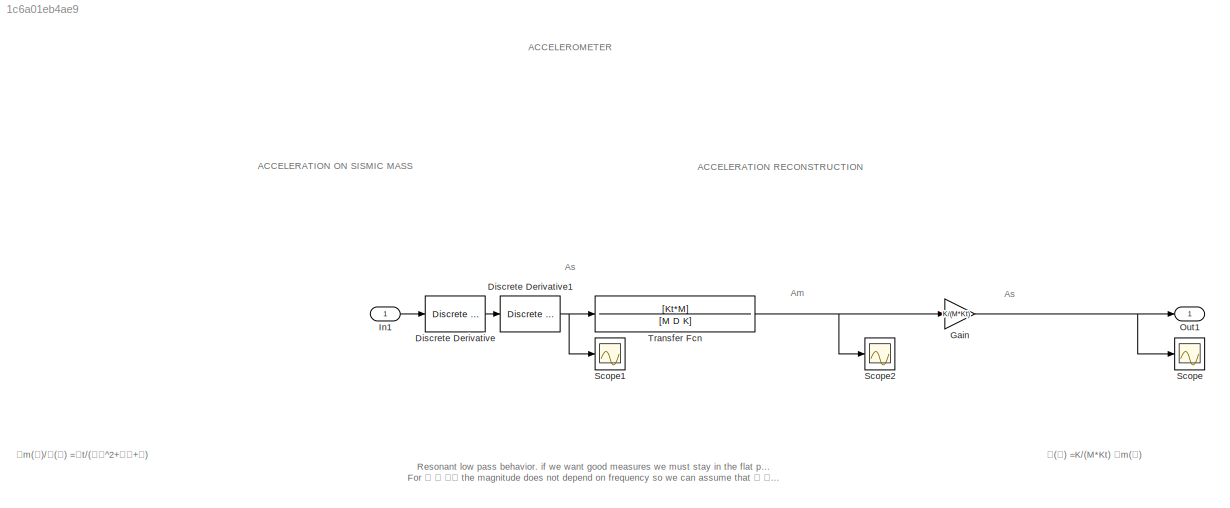
MODEL slx_1c6a01eb4ae9
KIND model
CONFIG AbsTol = auto
CONFIG EnableMultiTasking = off
CONFIG FixedStep = auto
CONFIG MaxStep = auto
CONFIG MinStep = auto
CONFIG RelTol = 1e-3
CONFIG SampleTimeConstraint = Unconstrained
CONFIG Solver = VariableStepAuto
CONFIG SolverName = VariableStepAuto
CONFIG StartTime = 0.0
CONFIG StopTime = 10.0
BLOCK [Reference] Discrete Derivative  REF=simulink/Discrete/Discrete Derivative
  Ports = [1, 1]
  SourceBlock = simulink/Discrete/Discrete Derivative
  SourceProductBaseCode = SL
  SourceProductName = Simulink
  SourceType = Discrete Derivative
BLOCK [Reference] Discrete Derivative1  REF=simulink/Discrete/Discrete Derivative
  Ports = [1, 1]
  SourceBlock = simulink/Discrete/Discrete Derivative
  SourceProductBaseCode = SL
  SourceProductName = Simulink
  SourceType = Discrete Derivative
BLOCK [Gain] Gain
  Gain = K/(M*Kt)
  OutDataTypeStr = Inherit: Inherit via internal rule
  ParamDataTypeStr = Inherit: Inherit via internal rule
  SaturateOnIntegerOverflow = off
BLOCK [Inport] In1
  IconDisplay = Port number
BLOCK [Outport] Out1
  IconDisplay = Port number
BLOCK [Scope] Scope
  Floating = off
  NumInputPorts = 1
  Ports = [1]
  ScopeSpecificationString = Simulink.scopes.TimeScopeBlockCfg('CurrentConfiguration', extmgr.ConfigurationSet(extmgr.Configuration('Core','General UI',true),extmgr.Configuration('Core','Source UI',true),extmgr.Configuration('Sources','WiredSimulink',true),extmgr.Configuration('Visuals','Time Domain',true,'SerializedDisplays',{struct('MinYLimReal','-3.359','MaxYLimReal','30.12486','YLabelReal','','MinYLimMag','0.00000','MaxYL...<+1353ch>
BLOCK [Scope] Scope1
  Floating = off
  NumInputPorts = 1
  Ports = [1]
  ScopeSpecificationString = Simulink.scopes.TimeScopeBlockCfg('CurrentConfiguration', extmgr.ConfigurationSet(extmgr.Configuration('Core','General UI',true),extmgr.Configuration('Core','Source UI',true),extmgr.Configuration('Sources','WiredSimulink',true,'DataLoggingVariableName','ScopeData1'),extmgr.Configuration('Visuals','Time Domain',true,'SerializedDisplays',{struct('MinYLimReal','-3.36646','MaxYLimReal','30.14675','YLa...<+1383ch>
BLOCK [Scope] Scope2
  Floating = off
  NumInputPorts = 1
  Ports = [1]
  ScopeSpecificationString = Simulink.scopes.TimeScopeBlockCfg('CurrentConfiguration', extmgr.ConfigurationSet(extmgr.Configuration('Core','General UI',true),extmgr.Configuration('Core','Source UI',true),extmgr.Configuration('Sources','WiredSimulink',true,'DataLoggingVariableName','ScopeData1'),extmgr.Configuration('Visuals','Time Domain',true,'SerializedDisplays',{struct('MinYLimReal','-0.01679','MaxYLimReal','0.15062','YLab...<+1371ch>
BLOCK [TransferFcn] Transfer Fcn
  Denominator = [M D K]
  Numerator = [Kt*M]
ANNOTATION (root): 𝐴(𝑠) =K/(M*Kt) 𝐴m(𝑠)
ANNOTATION (root): 𝐴m(𝑠)/𝐴(𝑠) =𝐾t/(𝑀𝑠^2+𝐷𝑠+𝐾)
ANNOTATION (root): ACCELEROMETER
ANNOTATION (root): ACCELERATION ON SISMIC MASS
ANNOTATION (root): ACCELERATION RECONSTRUCTION
ANNOTATION (root): Am
ANNOTATION (root): As
ANNOTATION (root): Resonant low pass behavior. if we want good measures we must stay in the flat part. For 𝜔 ≪ 𝜔𝑛 the magnitude does not depend on frequency so we can assume that 𝐺 𝑠 ≈ 𝐺(0) in this region.
NET Discrete Derivative1:1 -> Scope1:1, Transfer Fcn:1
LINE Discrete Derivative:1 -> Discrete Derivative1:1
NET Gain:1 -> Out1:1, Scope:1
LINE In1:1 -> Discrete Derivative:1
NET Transfer Fcn:1 -> Gain:1, Scope2:1
note: NET lines group one-source signal fan-out (src -> all destinations, sorted); 1:1 wires keep LINE
